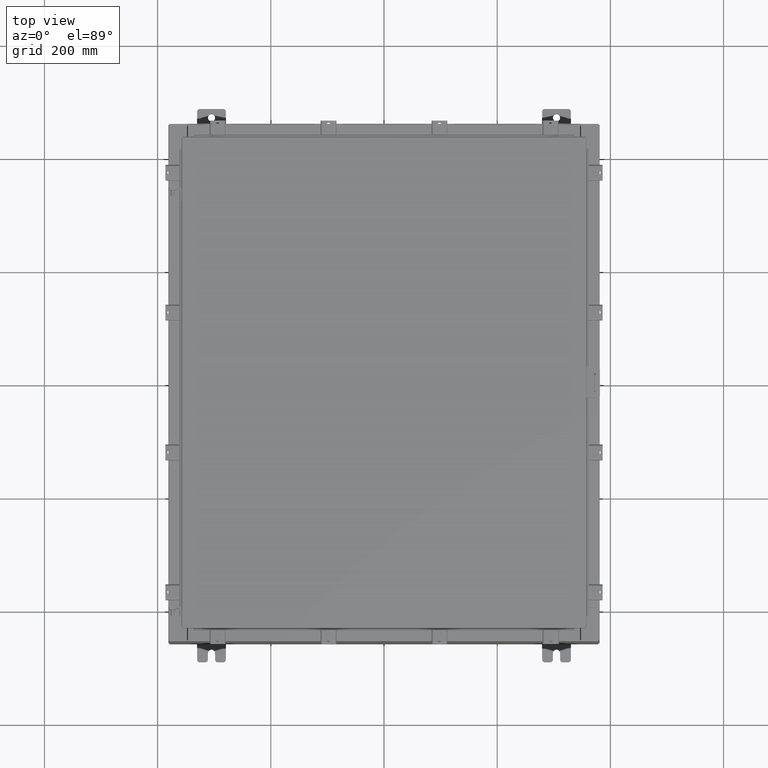
[diagram: clean part render]
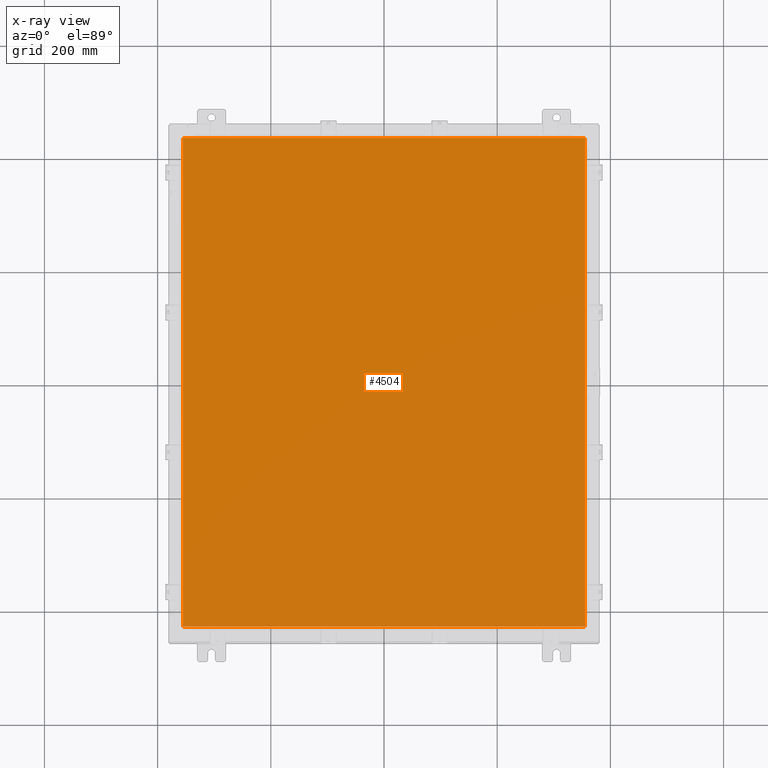
[diagram: x-ray — body ghosted, one internal face saturated and labeled with its STEP entity id]
A machine part, top view, then the same camera in x-ray: the body is ghosted and one INTERNAL B-rep face — a face not visible from any outside direction — is saturated and labeled: STEP entity #4504.
In plain terms, the highlighted planar face has unit normal (0, 0, -1).
Its self-contained STEP definition (entity closure, byte-faithful):
#716 = VECTOR ( 'NONE', #2855, 39.37007874015748100 ) ;
#1404 = CARTESIAN_POINT ( 'NONE',  ( -13.99030000000000000, -17.00630000000000300, -0.07470000000000000300 ) ) ;
#2016 = ORIENTED_EDGE ( 'NONE', *, *, #7632, .F. ) ;
#2517 = EDGE_LOOP ( 'NONE', ( #2016, #22490, #3844, #11643 ) ) ;
#2855 = DIRECTION ( 'NONE',  ( 0.0000000000000000000, -1.000000000000000000, 0.0000000000000000000 ) ) ;
#3844 = ORIENTED_EDGE ( 'NONE', *, *, #7962, .F. ) ;
#3953 = FACE_OUTER_BOUND ( 'NONE', #2517, .T. ) ;
#4504 = ADVANCED_FACE ( 'NONE', ( #3953 ), #8858, .T. ) ;
#4808 = EDGE_CURVE ( 'NONE', #7209, #18654, #6191, .T. ) ;
#5326 = LINE ( 'NONE', #8123, #716 ) ;
#6191 = LINE ( 'NONE', #7616, #15471 ) ;
#6356 = VERTEX_POINT ( 'NONE', #16099 ) ;
#7209 = VERTEX_POINT ( 'NONE', #1404 ) ;
#7412 = CARTESIAN_POINT ( 'NONE',  ( 13.99029999999999800, -17.00630000000000300, -0.07470000000000000300 ) ) ;
#7616 = CARTESIAN_POINT ( 'NONE',  ( -13.99029999999999800, -17.00630000000000300, -0.07470000000000019700 ) ) ;
#7632 = EDGE_CURVE ( 'NONE', #18654, #6356, #8998, .T. ) ;
#7795 = DIRECTION ( 'NONE',  ( 1.000000000000000000, -0.0000000000000000000, -0.0000000000000000000 ) ) ;
#7962 = EDGE_CURVE ( 'NONE', #21596, #7209, #5326, .T. ) ;
#8123 = CARTESIAN_POINT ( 'NONE',  ( -13.99030000000000000, 17.00630000000000000, -0.07470000000000019700 ) ) ;
#8543 = DIRECTION ( 'NONE',  ( -1.000000000000000000, 0.0000000000000000000, -0.0000000000000000000 ) ) ;
#8599 = DIRECTION ( 'NONE',  ( 0.0000000000000000000, 0.0000000000000000000, -1.000000000000000000 ) ) ;
#8858 = PLANE ( 'NONE',  #10479 ) ;
#8949 = CARTESIAN_POINT ( 'NONE',  ( 0.0000000000000000000, 0.0000000000000000000, -0.07470000000000000300 ) ) ;
#8998 = LINE ( 'NONE', #15790, #14150 ) ;
#9773 = CARTESIAN_POINT ( 'NONE',  ( 13.99029999999999600, 17.00629999999999600, -0.07469999999999910000 ) ) ;
#10479 = AXIS2_PLACEMENT_3D ( 'NONE', #8949, #8599, #8543 ) ;
#11643 = ORIENTED_EDGE ( 'NONE', *, *, #13468, .F. ) ;
#12412 = DIRECTION ( 'NONE',  ( 0.0000000000000000000, 1.000000000000000000, 0.0000000000000000000 ) ) ;
#13468 = EDGE_CURVE ( 'NONE', #6356, #21596, #15254, .T. ) ;
#13908 = VECTOR ( 'NONE', #20107, 39.37007874015748100 ) ;
#14150 = VECTOR ( 'NONE', #12412, 39.37007874015748100 ) ;
#15254 = LINE ( 'NONE', #9773, #13908 ) ;
#15471 = VECTOR ( 'NONE', #7795, 39.37007874015748100 ) ;
#15790 = CARTESIAN_POINT ( 'NONE',  ( 13.99029999999999800, -17.00630000000000700, -0.07470000000000019700 ) ) ;
#16099 = CARTESIAN_POINT ( 'NONE',  ( 13.99029999999999800, 17.00629999999999600, -0.07470000000000000300 ) ) ;
#18654 = VERTEX_POINT ( 'NONE', #7412 ) ;
#19810 = CARTESIAN_POINT ( 'NONE',  ( -13.99030000000000000, 17.00629999999999600, -0.07470000000000000300 ) ) ;
#20107 = DIRECTION ( 'NONE',  ( -1.000000000000000000, -0.0000000000000000000, -0.0000000000000000000 ) ) ;
#21596 = VERTEX_POINT ( 'NONE', #19810 ) ;
#22490 = ORIENTED_EDGE ( 'NONE', *, *, #4808, .F. ) ;